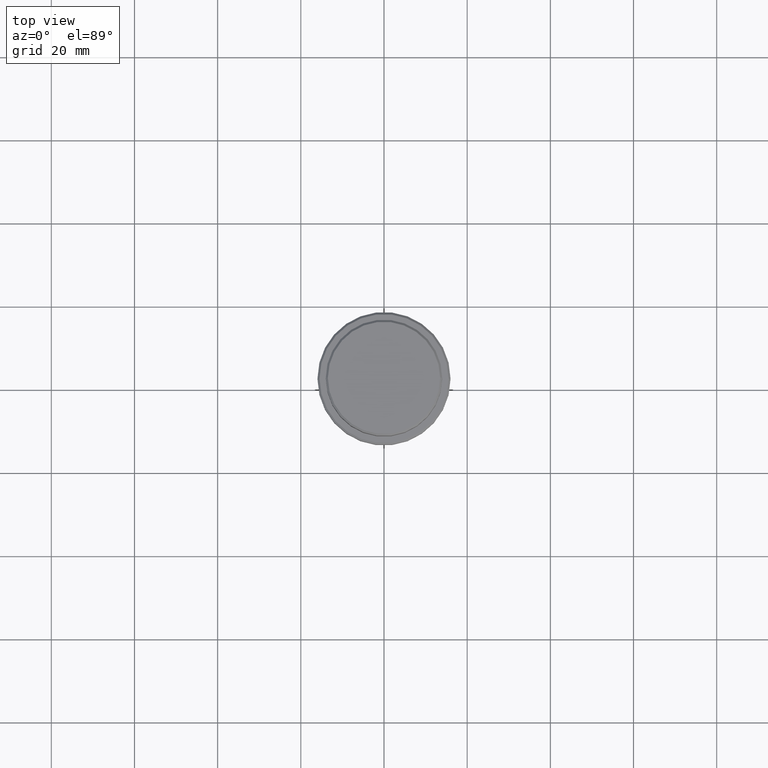
[diagram: clean part render]
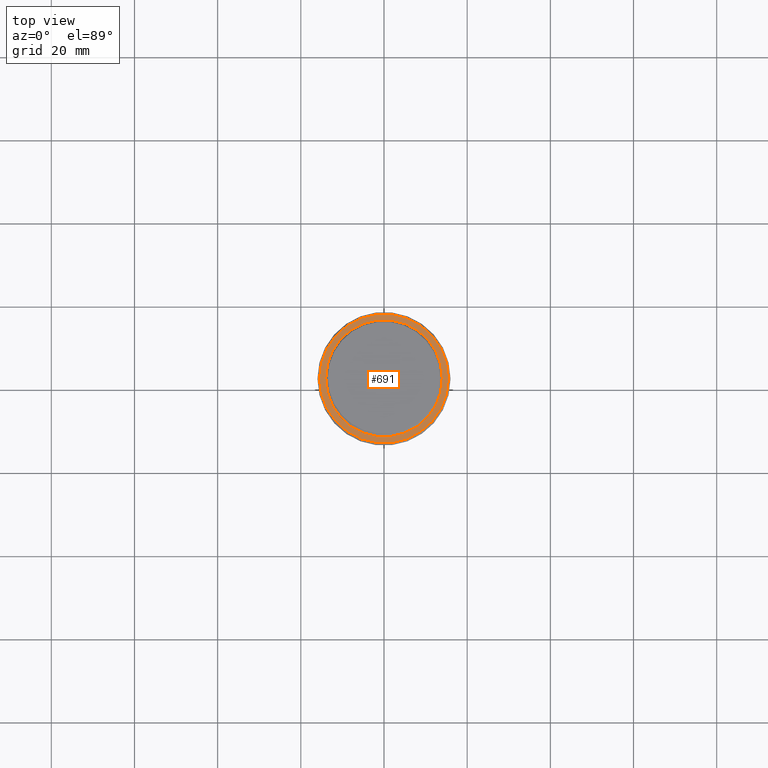
[diagram: same view with one face highlighted and labeled with its STEP entity id]
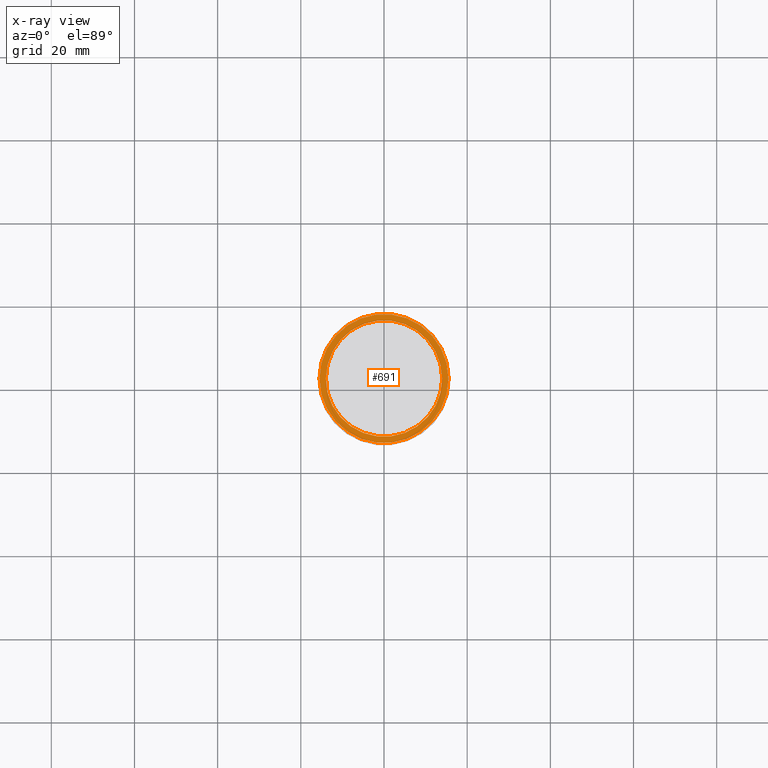
[diagram: x-ray of the same camera — body ghosted, the highlighted face saturated]
A machine part, top view. The second image highlights one B-rep face of the part: STEP entity #691.
The next image is the same camera in x-ray: the body ghosted, the highlighted face saturated — about 0% of this face is hidden behind the body in this view.
In plain terms, the highlighted planar face has unit normal (0, -0, 1).
Its self-contained STEP definition (entity closure, byte-faithful):
#5 = DIRECTION ( 'NONE',  ( 0.000000000000000000, 0.000000000000000000, -1.000000000000000000 ) ) ;
#17 = CARTESIAN_POINT ( 'NONE',  ( 15.49999999999995737, 1.928818708657077795E-15, -9.999999999999998224 ) ) ;
#22 = AXIS2_PLACEMENT_3D ( 'NONE', #197, #284, #636 ) ;
#122 = DIRECTION ( 'NONE',  ( -0.000000000000000000, -0.000000000000000000, 1.000000000000000000 ) ) ;
#129 = VERTEX_POINT ( 'NONE', #181 ) ;
#132 = EDGE_CURVE ( 'NONE', #303, #658, #1007, .T. ) ;
#150 = ORIENTED_EDGE ( 'NONE', *, *, #441, .T. ) ;
#158 = ORIENTED_EDGE ( 'NONE', *, *, #613, .T. ) ;
#181 = CARTESIAN_POINT ( 'NONE',  ( 13.99999999999997513, 0.000000000000000000, -9.999999999999998224 ) ) ;
#197 = CARTESIAN_POINT ( 'NONE',  ( 0.000000000000000000, 0.000000000000000000, -9.999999999999998224 ) ) ;
#211 = DIRECTION ( 'NONE',  ( 1.000000000000000000, 0.000000000000000000, 0.000000000000000000 ) ) ;
#269 = CIRCLE ( 'NONE', #1079, 13.99999999999997513 ) ;
#282 = EDGE_LOOP ( 'NONE', ( #150, #158 ) ) ;
#284 = DIRECTION ( 'NONE',  ( -0.000000000000000000, -0.000000000000000000, 1.000000000000000000 ) ) ;
#287 = EDGE_CURVE ( 'NONE', #658, #303, #408, .T. ) ;
#303 = VERTEX_POINT ( 'NONE', #17 ) ;
#372 = PLANE ( 'NONE',  #826 ) ;
#408 = CIRCLE ( 'NONE', #778, 15.49999999999995737 ) ;
#441 = EDGE_CURVE ( 'NONE', #129, #1015, #897, .T. ) ;
#445 = DIRECTION ( 'NONE',  ( 1.000000000000000000, 0.000000000000000000, 0.000000000000000000 ) ) ;
#453 = CARTESIAN_POINT ( 'NONE',  ( 0.000000000000000000, 0.000000000000000000, -9.999999999999998224 ) ) ;
#494 = ORIENTED_EDGE ( 'NONE', *, *, #132, .T. ) ;
#606 = FACE_OUTER_BOUND ( 'NONE', #727, .T. ) ;
#613 = EDGE_CURVE ( 'NONE', #1015, #129, #269, .T. ) ;
#636 = DIRECTION ( 'NONE',  ( 1.000000000000000000, 0.000000000000000000, 0.000000000000000000 ) ) ;
#658 = VERTEX_POINT ( 'NONE', #1234 ) ;
#691 = ADVANCED_FACE ( 'NONE', ( #606, #1356 ), #372, .T. ) ;
#714 = CARTESIAN_POINT ( 'NONE',  ( -13.99999999999997513, 1.714505518806291088E-15, -9.999999999999998224 ) ) ;
#716 = DIRECTION ( 'NONE',  ( 1.000000000000000000, 0.000000000000000000, 0.000000000000000000 ) ) ;
#727 = EDGE_LOOP ( 'NONE', ( #1016, #494 ) ) ;
#778 = AXIS2_PLACEMENT_3D ( 'NONE', #1102, #122, #445 ) ;
#826 = AXIS2_PLACEMENT_3D ( 'NONE', #1383, #1043, #716 ) ;
#882 = CARTESIAN_POINT ( 'NONE',  ( 0.000000000000000000, 0.000000000000000000, -9.999999999999998224 ) ) ;
#897 = CIRCLE ( 'NONE', #1197, 13.99999999999997513 ) ;
#901 = DIRECTION ( 'NONE',  ( 1.000000000000000000, 0.000000000000000000, 0.000000000000000000 ) ) ;
#1007 = CIRCLE ( 'NONE', #22, 15.49999999999995737 ) ;
#1015 = VERTEX_POINT ( 'NONE', #714 ) ;
#1016 = ORIENTED_EDGE ( 'NONE', *, *, #287, .T. ) ;
#1043 = DIRECTION ( 'NONE',  ( 0.000000000000000000, -0.000000000000000000, 1.000000000000000000 ) ) ;
#1079 = AXIS2_PLACEMENT_3D ( 'NONE', #453, #1242, #901 ) ;
#1102 = CARTESIAN_POINT ( 'NONE',  ( 0.000000000000000000, 0.000000000000000000, -9.999999999999998224 ) ) ;
#1197 = AXIS2_PLACEMENT_3D ( 'NONE', #882, #5, #211 ) ;
#1234 = CARTESIAN_POINT ( 'NONE',  ( -15.49999999999995737, 0.000000000000000000, -9.999999999999998224 ) ) ;
#1242 = DIRECTION ( 'NONE',  ( 0.000000000000000000, 0.000000000000000000, -1.000000000000000000 ) ) ;
#1356 = FACE_BOUND ( 'NONE', #282, .T. ) ;
#1383 = CARTESIAN_POINT ( 'NONE',  ( 0.000000000000000000, 13.49999999999997335, -9.999999999999998224 ) ) ;